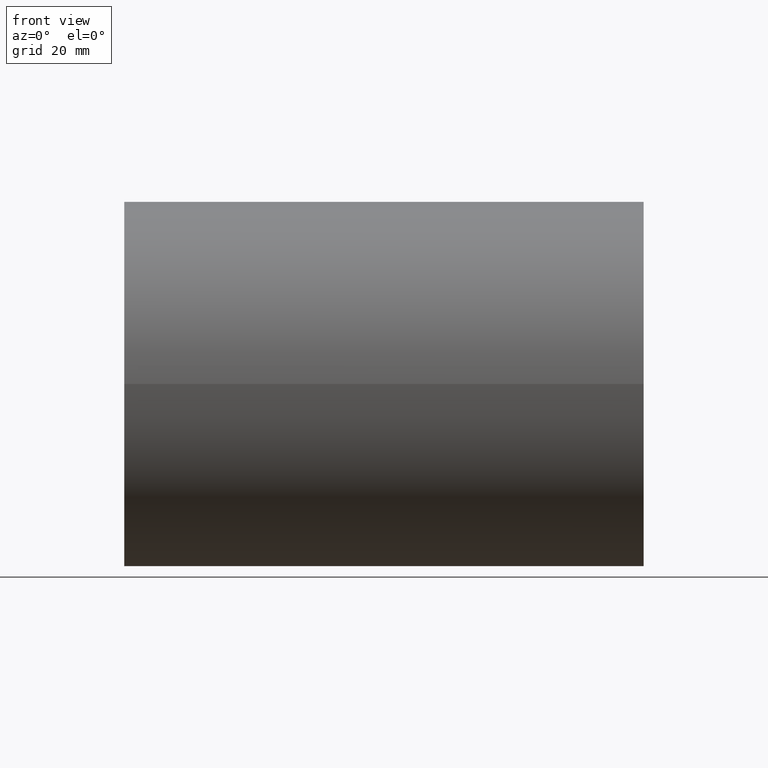
[diagram: clean part render]
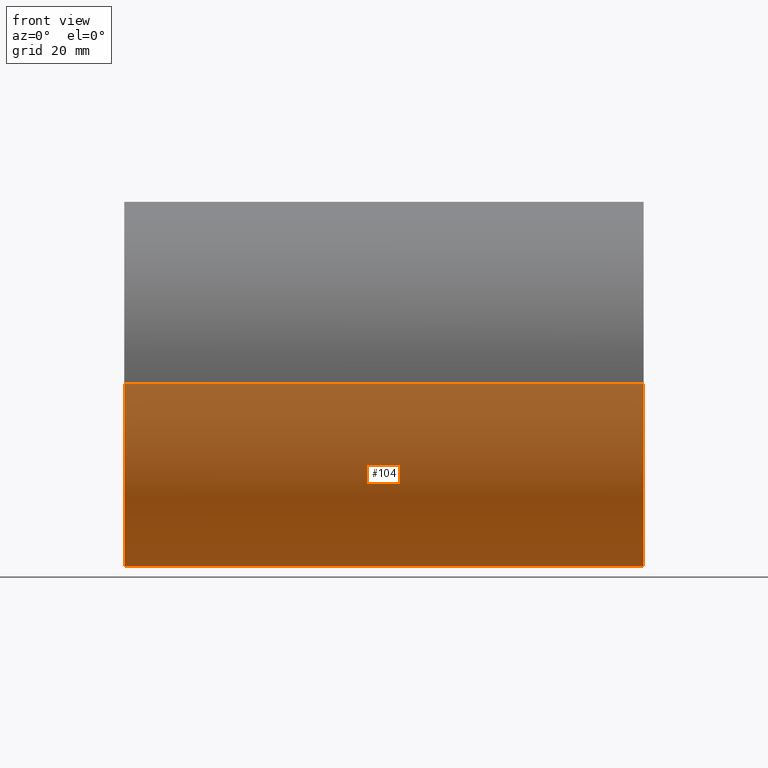
[diagram: same view with one face highlighted and labeled with its STEP entity id]
A machine part, front view. The second image highlights one B-rep face of the part: STEP entity #104.
In plain terms, the highlighted cylindrical surface (partial cylindrical patch) has radius 30.15 mm, axis along (1, 0, -0).
Its self-contained STEP definition (entity closure, byte-faithful):
#6 = VERTEX_POINT ( 'NONE', #74 ) ;
#12 = DIRECTION ( 'NONE',  ( 1.000000000000000000, 3.061616997868382648E-16, -0.000000000000000000 ) ) ;
#22 = VERTEX_POINT ( 'NONE', #160 ) ;
#24 = DIRECTION ( 'NONE',  ( 1.000000000000000000, 3.061616997868382648E-16, -0.000000000000000000 ) ) ;
#27 = CARTESIAN_POINT ( 'NONE',  ( -43.00000000000000000, -1.665519646840400224E-14, 0.000000000000000000 ) ) ;
#29 = CYLINDRICAL_SURFACE ( 'NONE', #110, 30.14999999999999858 ) ;
#31 = VECTOR ( 'NONE', #12, 1000.000000000000000 ) ;
#45 = CARTESIAN_POINT ( 'NONE',  ( 43.00000000000000000, -30.14999999999998792, 3.692310099429270397E-15 ) ) ;
#57 = EDGE_CURVE ( 'NONE', #22, #133, #87, .T. ) ;
#59 = DIRECTION ( 'NONE',  ( -2.301457347896261609E-16, 1.000000000000000000, 0.000000000000000000 ) ) ;
#60 = LINE ( 'NONE', #111, #31 ) ;
#74 = CARTESIAN_POINT ( 'NONE',  ( -42.99999999999999289, -30.15000000000001634, 3.692310099429271974E-15 ) ) ;
#81 = CARTESIAN_POINT ( 'NONE',  ( -43.00000000000000000, -1.665519646840400224E-14, 0.000000000000000000 ) ) ;
#82 = CARTESIAN_POINT ( 'NONE',  ( -43.00000000000000000, 30.14999999999998082, 0.000000000000000000 ) ) ;
#84 = DIRECTION ( 'NONE',  ( -1.000000000000000000, -3.061616997868382648E-16, 0.000000000000000000 ) ) ;
#87 = CIRCLE ( 'NONE', #108, 30.14999999999999858 ) ;
#88 = CIRCLE ( 'NONE', #183, 30.14999999999999858 ) ;
#89 = EDGE_CURVE ( 'NONE', #6, #133, #143, .T. ) ;
#100 = ORIENTED_EDGE ( 'NONE', *, *, #89, .F. ) ;
#104 = ADVANCED_FACE ( 'NONE', ( #167 ), #29, .T. ) ;
#108 = AXIS2_PLACEMENT_3D ( 'NONE', #137, #215, #203 ) ;
#110 = AXIS2_PLACEMENT_3D ( 'NONE', #81, #240, #59 ) ;
#111 = CARTESIAN_POINT ( 'NONE',  ( -43.00000000000000000, 30.14999999999998082, 0.000000000000000000 ) ) ;
#133 = VERTEX_POINT ( 'NONE', #45 ) ;
#137 = CARTESIAN_POINT ( 'NONE',  ( 43.00000000000000000, 9.674709713264084593E-15, 0.000000000000000000 ) ) ;
#138 = VECTOR ( 'NONE', #24, 1000.000000000000000 ) ;
#143 = LINE ( 'NONE', #164, #138 ) ;
#146 = EDGE_CURVE ( 'NONE', #184, #6, #88, .T. ) ;
#160 = CARTESIAN_POINT ( 'NONE',  ( 42.99999999999999289, 30.15000000000000924, 0.000000000000000000 ) ) ;
#164 = CARTESIAN_POINT ( 'NONE',  ( -42.99999999999999289, -30.15000000000001634, 3.692310099429270397E-15 ) ) ;
#167 = FACE_OUTER_BOUND ( 'NONE', #197, .T. ) ;
#183 = AXIS2_PLACEMENT_3D ( 'NONE', #27, #84, #194 ) ;
#184 = VERTEX_POINT ( 'NONE', #82 ) ;
#185 = ORIENTED_EDGE ( 'NONE', *, *, #219, .T. ) ;
#194 = DIRECTION ( 'NONE',  ( 2.301457347896261609E-16, -1.000000000000000000, 0.000000000000000000 ) ) ;
#197 = EDGE_LOOP ( 'NONE', ( #100, #200, #185, #198 ) ) ;
#198 = ORIENTED_EDGE ( 'NONE', *, *, #57, .T. ) ;
#200 = ORIENTED_EDGE ( 'NONE', *, *, #146, .F. ) ;
#203 = DIRECTION ( 'NONE',  ( 2.301457347896261609E-16, -1.000000000000000000, 0.000000000000000000 ) ) ;
#215 = DIRECTION ( 'NONE',  ( -1.000000000000000000, -3.061616997868382648E-16, 0.000000000000000000 ) ) ;
#219 = EDGE_CURVE ( 'NONE', #184, #22, #60, .T. ) ;
#240 = DIRECTION ( 'NONE',  ( 1.000000000000000000, 3.061616997868382648E-16, -0.000000000000000000 ) ) ;